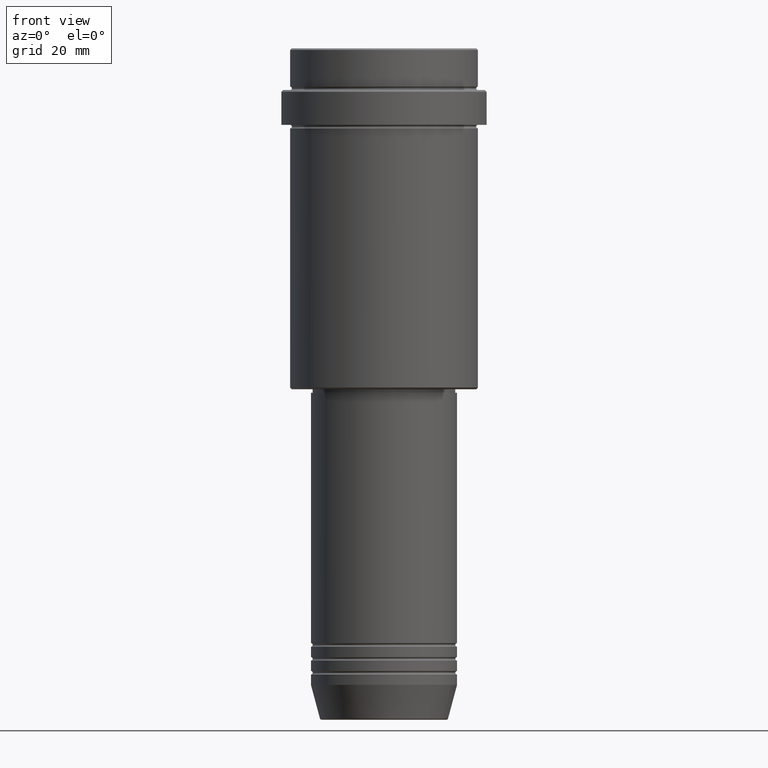
[diagram: clean part render]
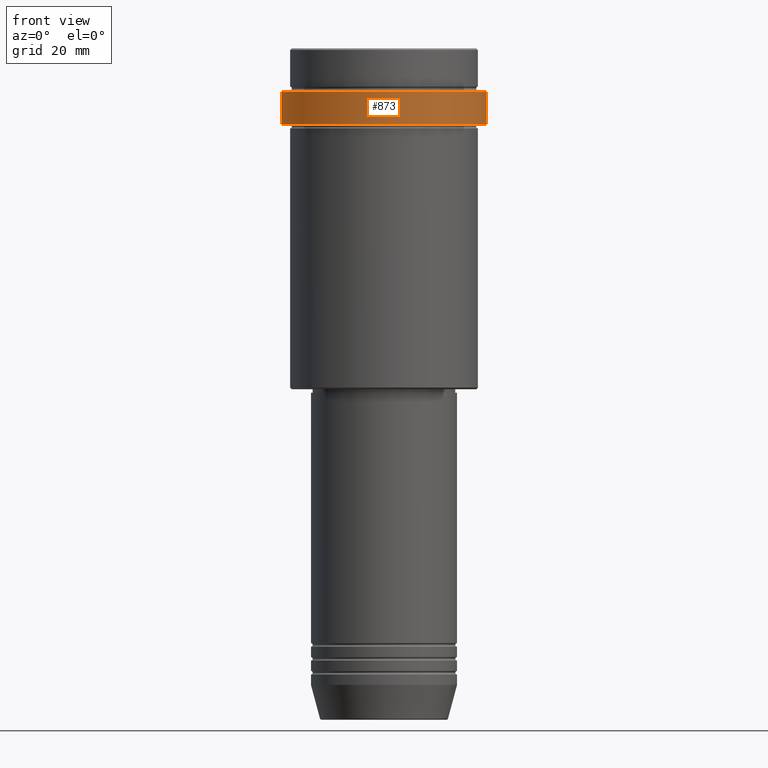
[diagram: same view with one face highlighted and labeled with its STEP entity id]
A machine part, front view. The second image highlights one B-rep face of the part: STEP entity #873.
In plain terms, the highlighted cylindrical surface (partial cylindrical patch) has radius 29.5 mm, axis along (-0, -0, 1).
Its self-contained STEP definition (entity closure, byte-faithful):
#25 = CARTESIAN_POINT ( 'NONE',  ( -29.50000000000000000, 3.612708057484691604E-15, 0.000000000000000000 ) ) ;
#52 = VERTEX_POINT ( 'NONE', #238 ) ;
#80 = LINE ( 'NONE', #948, #1384 ) ;
#142 = CARTESIAN_POINT ( 'NONE',  ( 0.000000000000000000, 0.000000000000000000, -12.49999999999997691 ) ) ;
#151 = DIRECTION ( 'NONE',  ( 0.000000000000000000, 0.000000000000000000, -1.000000000000000000 ) ) ;
#173 = DIRECTION ( 'NONE',  ( -0.000000000000000000, -0.000000000000000000, 1.000000000000000000 ) ) ;
#237 = CIRCLE ( 'NONE', #951, 29.49999999999999645 ) ;
#238 = CARTESIAN_POINT ( 'NONE',  ( 29.49999999999999645, 0.000000000000000000, -22.00000000000000711 ) ) ;
#396 = CARTESIAN_POINT ( 'NONE',  ( -29.50000000000000000, 3.612708057484691604E-15, -12.49999999999997691 ) ) ;
#456 = EDGE_CURVE ( 'NONE', #1335, #52, #237, .T. ) ;
#458 = LINE ( 'NONE', #25, #616 ) ;
#586 = DIRECTION ( 'NONE',  ( 1.000000000000000000, 0.000000000000000000, 0.000000000000000000 ) ) ;
#616 = VECTOR ( 'NONE', #1116, 1000.000000000000000 ) ;
#642 = EDGE_CURVE ( 'NONE', #1335, #900, #458, .T. ) ;
#709 = AXIS2_PLACEMENT_3D ( 'NONE', #142, #151, #586 ) ;
#718 = DIRECTION ( 'NONE',  ( 1.000000000000000000, 0.000000000000000000, 0.000000000000000000 ) ) ;
#734 = CYLINDRICAL_SURFACE ( 'NONE', #1338, 29.50000000000000000 ) ;
#855 = FACE_OUTER_BOUND ( 'NONE', #1301, .T. ) ;
#873 = ADVANCED_FACE ( 'NONE', ( #855 ), #734, .T. ) ;
#879 = EDGE_CURVE ( 'NONE', #52, #1027, #80, .T. ) ;
#900 = VERTEX_POINT ( 'NONE', #396 ) ;
#948 = CARTESIAN_POINT ( 'NONE',  ( 29.50000000000000000, 0.000000000000000000, 0.000000000000000000 ) ) ;
#951 = AXIS2_PLACEMENT_3D ( 'NONE', #1071, #1378, #983 ) ;
#983 = DIRECTION ( 'NONE',  ( 1.000000000000000000, 0.000000000000000000, 0.000000000000000000 ) ) ;
#1027 = VERTEX_POINT ( 'NONE', #1203 ) ;
#1036 = DIRECTION ( 'NONE',  ( -0.000000000000000000, -0.000000000000000000, 1.000000000000000000 ) ) ;
#1041 = CIRCLE ( 'NONE', #709, 29.50000000000000000 ) ;
#1043 = ORIENTED_EDGE ( 'NONE', *, *, #879, .T. ) ;
#1071 = CARTESIAN_POINT ( 'NONE',  ( 0.000000000000000000, 0.000000000000000000, -22.00000000000000711 ) ) ;
#1116 = DIRECTION ( 'NONE',  ( -0.000000000000000000, -0.000000000000000000, 1.000000000000000000 ) ) ;
#1151 = ORIENTED_EDGE ( 'NONE', *, *, #1170, .T. ) ;
#1170 = EDGE_CURVE ( 'NONE', #1027, #900, #1041, .T. ) ;
#1203 = CARTESIAN_POINT ( 'NONE',  ( 29.50000000000000000, 0.000000000000000000, -12.49999999999997691 ) ) ;
#1285 = CARTESIAN_POINT ( 'NONE',  ( 0.000000000000000000, 0.000000000000000000, 0.000000000000000000 ) ) ;
#1292 = CARTESIAN_POINT ( 'NONE',  ( -29.49999999999999645, 3.612708057484690815E-15, -22.00000000000000711 ) ) ;
#1301 = EDGE_LOOP ( 'NONE', ( #1409, #1351, #1043, #1151 ) ) ;
#1335 = VERTEX_POINT ( 'NONE', #1292 ) ;
#1338 = AXIS2_PLACEMENT_3D ( 'NONE', #1285, #173, #718 ) ;
#1351 = ORIENTED_EDGE ( 'NONE', *, *, #456, .T. ) ;
#1378 = DIRECTION ( 'NONE',  ( -0.000000000000000000, -0.000000000000000000, 1.000000000000000000 ) ) ;
#1384 = VECTOR ( 'NONE', #1036, 1000.000000000000000 ) ;
#1409 = ORIENTED_EDGE ( 'NONE', *, *, #642, .F. ) ;